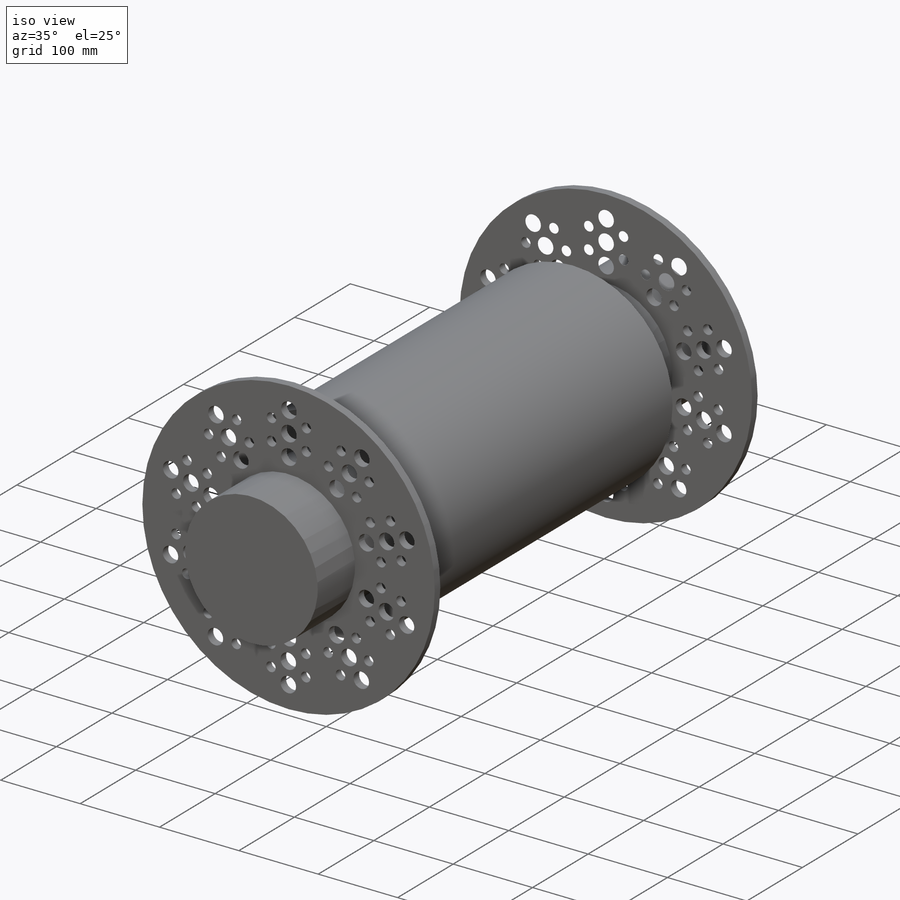
[diagram: iso view]
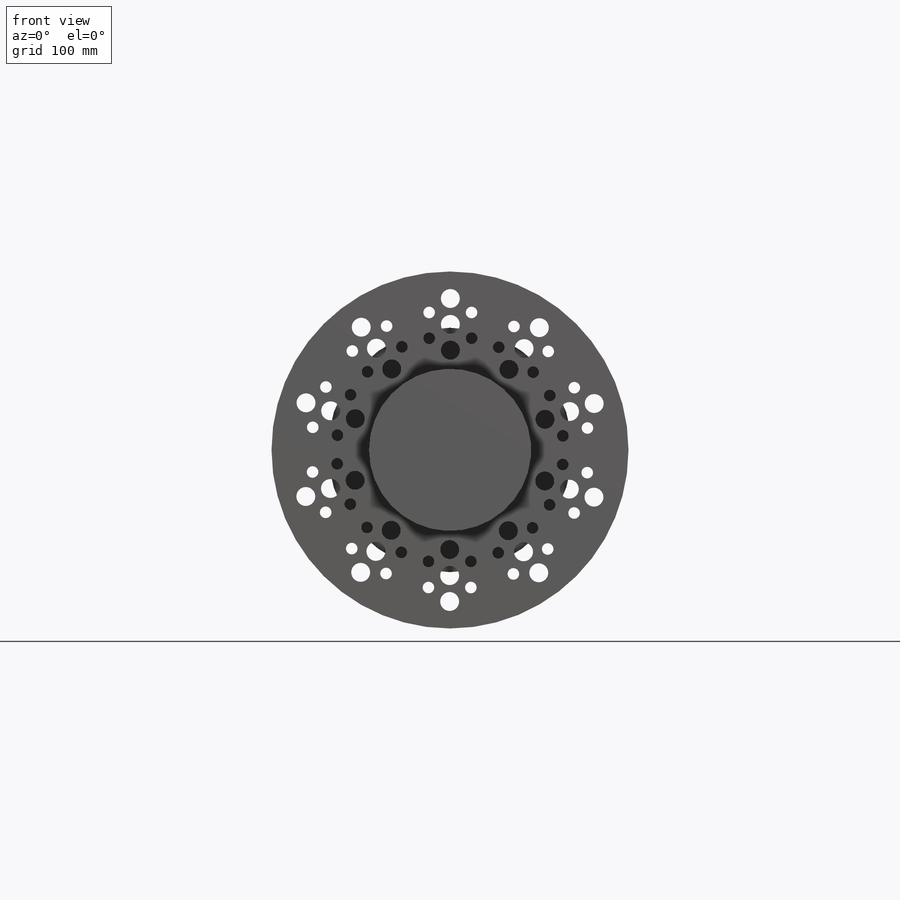
[diagram: front view]
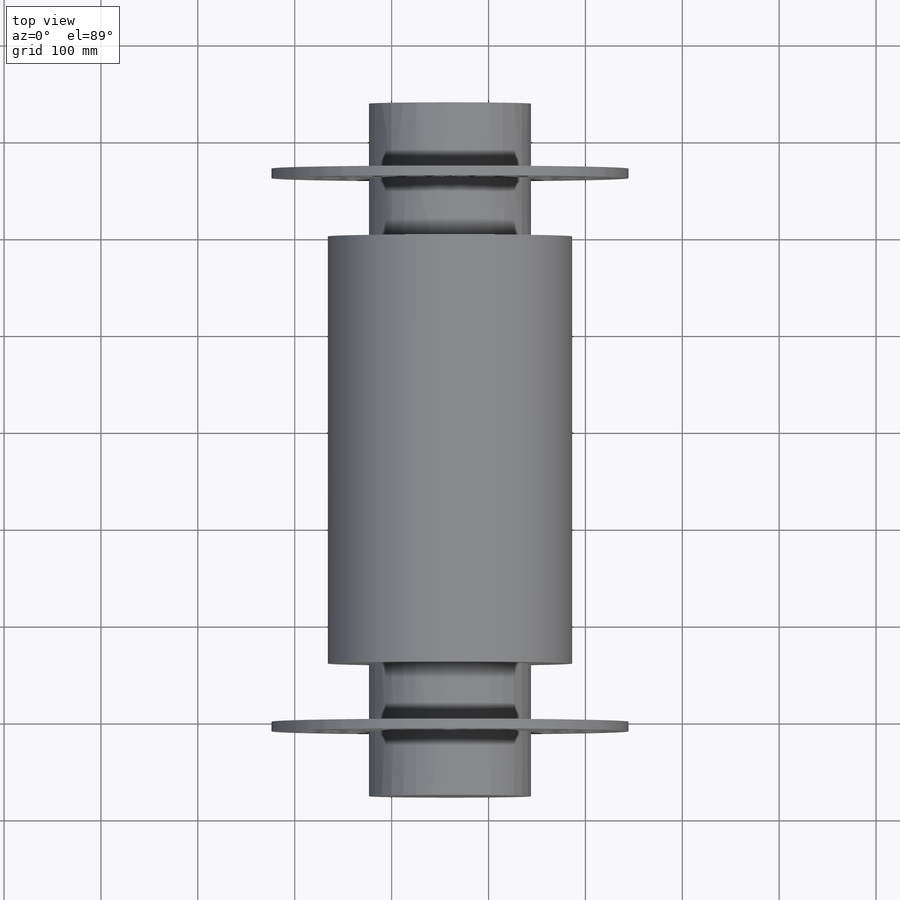
[diagram: top view]
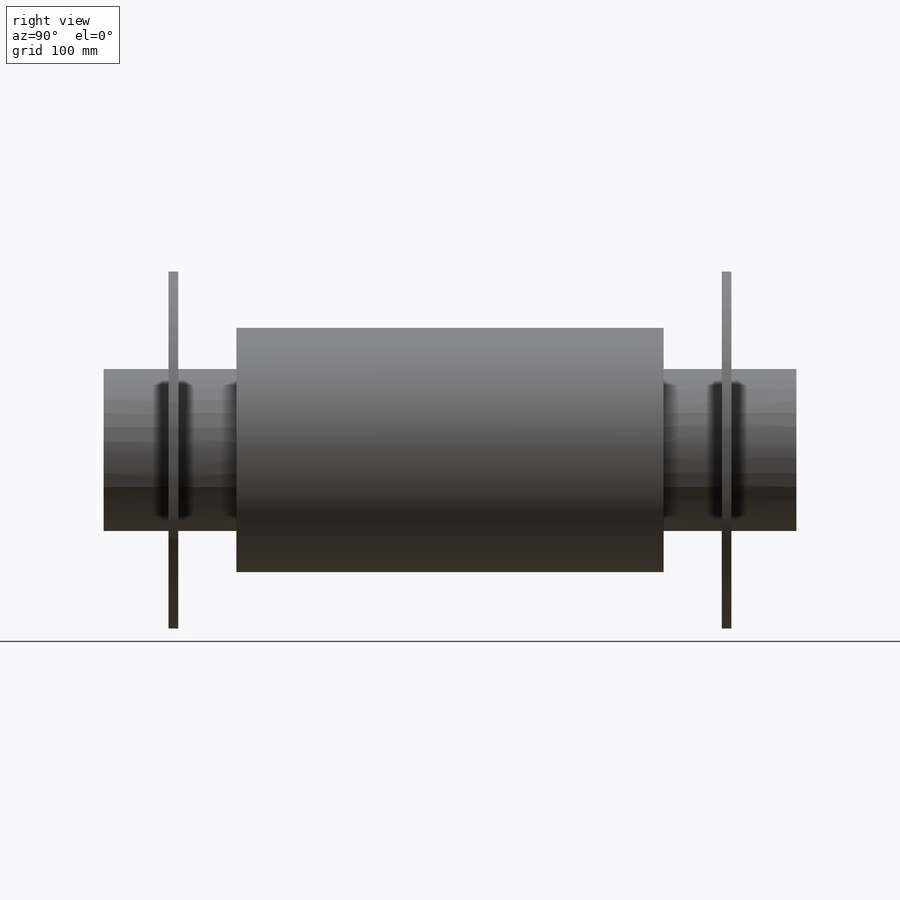
[diagram: right view]
SOLIDWORKS PART (.sldprt)
format: sldprt  version: not decoded by parser v0  size: 5,303,296 bytes
history: native  units: mm
features: sketch x83, extrude x61, cut_extrude x16, fillet x16, chamfer x9, dome x5, pattern_linear x4, plane x3, helix x2, sweep x2, material x1, mirror x1 (+13 scaffold rows collapsed)
feature tree (216):
  scaffold x13  (default folders/planes/origin — collapsed)
  material  "Material <not specified>"
  sketch  "Sketch1"
  extrude  "Boss-Extrude1"  Depth=400mm
  sketch  "Sketch2"
  cut_extrude  "Cut-Extrude1"  Depth=1008mm
  sketch  "Sketch4"
  cut_extrude  "Cut-Extrude2"  Depth=1236mm
  sketch  "Sketch5"
  cut_extrude  "Cut-Extrude3"  Depth=1236mm
  sketch  "Sketch6"
  cut_extrude  "Cut-Extrude4"  Depth=359mm
  sketch  "Sketch7"
  extrude  "Boss-Extrude2"  Depth=164mm
  sketch  "Sketch8"  dims[D1=0.0mm]
  extrude  "Boss-Extrude3"  Depth=164mm
  sketch  "Sketch10"
  cut_extrude  "Cut-Extrude5"  [1 undecoded]
  sketch  "Sketch11"
  cut_extrude  "Cut-Extrude6"  [1 undecoded]
  sketch  "Sketch13"
  extrude  "Boss-Extrude4"  Depth=137mm
  sketch  "Sketch14"  dims[D1=0.0mm]
  extrude  "Boss-Extrude5"  Depth=137mm
  sketch  "Sketch15"
  extrude  "Boss-Extrude6"  [1 undecoded]
  plane  "Plane1"  Offset=60mm
  sketch  "Sketch16"
  extrude  "Boss-Extrude7"  Depth=10mm
  sketch  "Sketch17"  dims[D1=10.0]
  cut_extrude  "Cut-Extrude7"  Depth=30mm
  sketch  "Sketch18"
  extrude  "Boss-Extrude8"  Depth=33mm
  sketch  "Sketch19"  dims[D1=40.0mm]
  extrude  "Boss-Extrude9"  Depth=22mm
  sketch  "Sketch20"  dims[D1=0.0mm]
  extrude  "Boss-Extrude10"  Depth=31mm
  sketch  "Sketch21"
  cut_extrude  "Cut-Extrude8"  Depth=611mm
  sketch  "Sketch22"
  extrude  "Boss-Extrude11"  [1 undecoded]
  dome  "Dome1"
  dome  "Dome2"
  dome  "Dome3"
  sketch  "Sketch23"
  extrude  "Boss-Extrude12"  Depth=2mm
  sketch  "Sketch24"
  extrude  "Boss-Extrude13"  Depth=12mm
  fillet  "Fillet1"  Radius=2mm
  sketch  "Sketch25"
  cut_extrude  "Cut-Extrude9"  Depth=10mm
  sketch  "Sketch26"
  extrude  "Boss-Extrude14"  [1 undecoded]
  sketch  "Sketch27"  dims[D1=10.0mm]
  cut_extrude  "Cut-Extrude10"  [1 undecoded]
  sketch  "Sketch28"
  cut_extrude  "Cut-Extrude11"  Depth=581mm
  mirror  "Mirror1"
  chamfer  "Chamfer1"  Distance=40mm Angle=45deg
  chamfer  "Chamfer2"  Distance=40mm Angle=45deg
  chamfer  "Chamfer3"  Distance=40mm Angle=45deg
  chamfer  "Chamfer4"  Distance=40mm Angle=45deg
  chamfer  "Chamfer5"  Distance=40mm Angle=45deg
  chamfer  "Chamfer6"  Distance=40mm Angle=45deg
  chamfer  "Chamfer7"  Distance=40mm Angle=45deg
  chamfer  "Chamfer8"  Distance=40mm Angle=45deg
  sketch  "Sketch29"
  extrude  "Boss-Extrude16"  Depth=19mm
  sketch  "Sketch30"  dims[D1=0.0mm]
  extrude  "Boss-Extrude17"  Depth=19mm
  dome  "Dome4"
  dome  "Dome5"
  sketch  "Sketch31"
  cut_extrude  "Cut-Extrude13"  Depth=483mm
  sketch  "Sketch33"
  extrude  "Boss-Extrude18"  Depth=4mm
  sketch  "Sketch34"
  extrude  "Boss-Extrude19"  Depth=4mm
  sketch  "Sketch35"
  extrude  "Boss-Extrude20"  Depth=20mm
  sketch  "Sketch36"
  extrude  "Boss-Extrude21"  Depth=20mm
  sketch  "Sketch37"
  extrude  "Boss-Extrude22"  Depth=20mm
  sketch  "Sketch38"
  extrude  "Boss-Extrude23"  Depth=20mm
  sketch  "Sketch39"
  extrude  "Boss-Extrude24"  Depth=471mm
  sketch  "Sketch40"  dims[D1=0.0mm]
  extrude  "Boss-Extrude25"  Depth=471mm
  sketch  "Sketch41"  dims[D1=0.0mm]
  extrude  "Boss-Extrude26"  Depth=50mm
  sketch  "Sketch42"  dims[D1=0.0mm]
  extrude  "Boss-Extrude27"  Depth=50mm
  fillet  "Fillet2"  Radius=52mm
  fillet  "Fillet3"  Radius=52mm
  fillet  "Fillet4"  Radius=52mm
  fillet  "Fillet5"  Radius=52mm
  sketch  "Sketch43"
  cut_extrude  "Cut-Extrude14"  Depth=1534mm
  fillet  "Fillet6"  Radius=52mm
  fillet  "Fillet7"  Radius=52mm
  fillet  "Fillet8"  Radius=2mm
  fillet  "Fillet9"  Radius=2mm
  fillet  "Fillet10"  Radius=2mm
  pattern_linear  "LPattern1"  Count1=2 Count2=1 Spacing1=380mm Spacing2=10mm
  pattern_linear  "LPattern2"  Count1=2 Count2=1 Spacing1=380mm Spacing2=10mm
  sketch  "Sketch44"
  extrude  "Boss-Extrude28"  [1 undecoded]
  sketch  "Sketch45"
  extrude  "Boss-Extrude29"  Depth=30mm
  sketch  "Sketch46"
  extrude  "Boss-Extrude30"  Depth=30mm
  sketch  "Sketch47"
  extrude  "Boss-Extrude31"  Depth=30mm
  pattern_linear  "LPattern3"  Count1=2 Count2=1 Spacing1=60mm Spacing2=10mm
  sketch  "Sketch50"  dims[D1=0.0mm D2=0.0mm]
  extrude  "Boss-Extrude32"  Depth=30mm
  pattern_linear  "LPattern4"  Count1=2 Count2=1 Spacing1=60mm Spacing2=10mm
  sketch  "Sketch51"
  extrude  "Boss-Extrude33"  Depth=30mm
  sketch  "Sketch52"
  extrude  "Boss-Extrude34"  Depth=30mm
  sketch  "Sketch54"  dims[D1=10.0mm D2=10.0mm]
  extrude  "Boss-Extrude35"  Depth=185mm
  sketch  "Sketch55"  dims[D1=10.0mm D2=10.0mm]
  extrude  "Boss-Extrude36"  Depth=185mm
  sketch  "Sketch56"  dims[D1=20.0mm D2=20.0mm]
  extrude  "Boss-Extrude37"  Depth=125mm
  sketch  "Sketch57"  dims[D1=20.0mm D2=20.0mm]
  extrude  "Boss-Extrude38"  Depth=125mm
  sketch  "Sketch58"  dims[D1=20.0mm D2=20.0mm]
  extrude  "Boss-Extrude39"  Depth=30mm
  sketch  "Sketch59"  dims[D1=20.0mm D2=20.0mm]
  extrude  "Boss-Extrude40"  Depth=30mm
  sketch  "Sketch60"  dims[D1=3.0mm D2=3.0mm]
  extrude  "Boss-Extrude41"  Depth=50mm
  sketch  "Sketch61"  dims[D1=3.0mm D2=3.0mm]
  extrude  "Boss-Extrude42"  Depth=50mm
  fillet  "Fillet11"  Radius=2mm
  fillet  "Fillet12"  Radius=2mm
  sketch  "Sketch63"
  extrude  "Boss-Extrude43"  [1 undecoded]
  sketch  "Sketch64"
  extrude  "Boss-Extrude44"  [1 undecoded]
  sketch  "Sketch65"  dims[D1=13.0mm]
  extrude  "Boss-Extrude45"  Depth=30mm
  sketch  "Sketch66"  dims[D1=0.0mm]
  extrude  "Boss-Extrude46"  Depth=30mm
  sketch  "Sketch67"  dims[D1=0.0mm]
  extrude  "Boss-Extrude47"  Depth=30mm
  sketch  "Sketch68"  dims[D1=0.0mm]
  extrude  "Boss-Extrude48"  Depth=30mm
  sketch  "Sketch69"
  cut_extrude  "Cut-Extrude15"  Depth=680mm
  sketch  "Sketch70"
  extrude  "Boss-Extrude49"  Depth=312mm
  sketch  "Sketch71"
  extrude  "Boss-Extrude50"  Depth=294mm
  sketch  "Sketch72"
  extrude  "Boss-Extrude51"  [1 undecoded]
  plane  "Plane3"  Offset=30mm
  sketch  "Sketch73"  dims[D1=23.0mm]
  extrude  "Boss-Extrude52"  Depth=36mm
  sketch  "Sketch74"
  plane  "Plane4"
  sketch  "Sketch75"
  helix  "Helix/Spiral1"  Pitch=421mm
  sketch  "Sketch77"
  sweep  "Sweep2"
  sketch  "Sketch78"
  cut_extrude  "Cut-Extrude16"  Depth=276mm
  sketch  "Sketch79"
  extrude  "Boss-Extrude53"  [1 undecoded]
  sketch  "Sketch82"
  extrude  "Boss-Extrude55"  Depth=30mm
  sketch  "Sketch84"
  sketch  "Sketch85"
  extrude  "Boss-Extrude56"  Depth=76mm
  chamfer  "Chamfer10"  Distance=23mm Angle=45deg
  sketch  "Sketch86"
  extrude  "Boss-Extrude57"  Depth=74mm
  fillet  "Fillet14"  Radius=11mm
  fillet  "Fillet15"  Radius=11mm
  fillet  "Fillet16"  Radius=11mm
  fillet  "Fillet17"  Radius=11mm
  sketch  "Sketch87"
  extrude  "Boss-Extrude58"  Depth=74mm
  sketch  "Sketch88"  dims[D1=8.0]
  cut_extrude  "Cut-Extrude19"  Depth=146mm
  sketch  "Sketch89"
  helix  "Helix/Spiral2"  Pitch=109mm
  sketch  "Sketch90"
  sweep  "Cut-Sweep1"
  sketch  "Sketch92"  dims[D1=0.0mm]
  sketch  "Sketch93"
  extrude  "Boss-Extrude62"  [1 undecoded]
  extrude  "Boss-Extrude63"  Depth=5mm
  sketch  "Sketch94"  dims[D1=0.0mm]
  extrude  "Boss-Extrude64"  Depth=5mm
  sketch  "Sketch95"
  extrude  "Boss-Extrude65"  Depth=26.1mm
  sketch  "Sketch96"  dims[D1=8.0]
  extrude  "Boss-Extrude66"  [1 undecoded]
decode coverage: 123 of 199 modeling features carry decoded parameters
note: 13 parameter values undecoded
summary: no parameter record found for 13 features
note: suppression state not decoded; provenance and decode notes live in map.json
